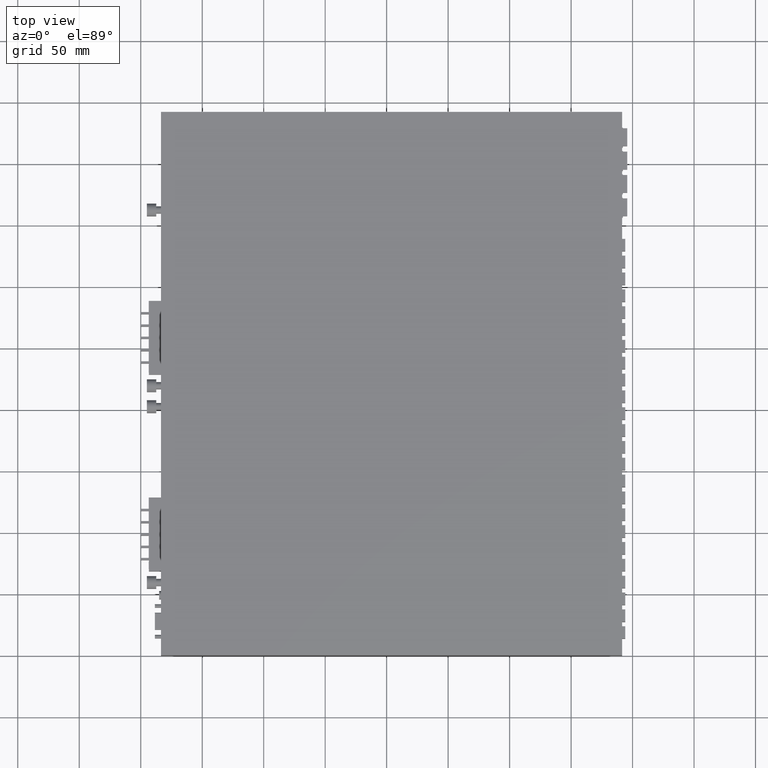
[diagram: clean part render]
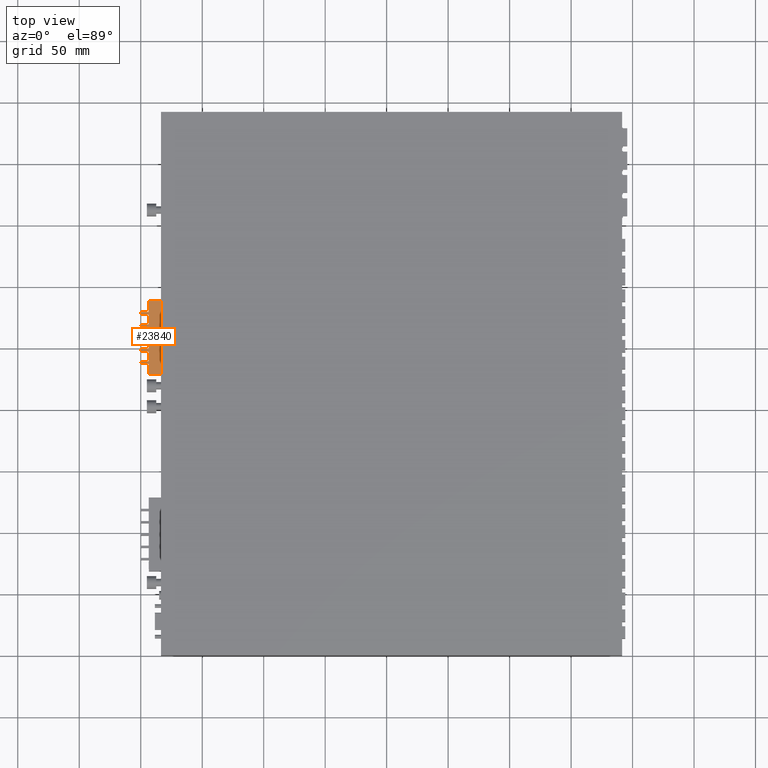
[diagram: same view with one face highlighted and labeled with its STEP entity id]
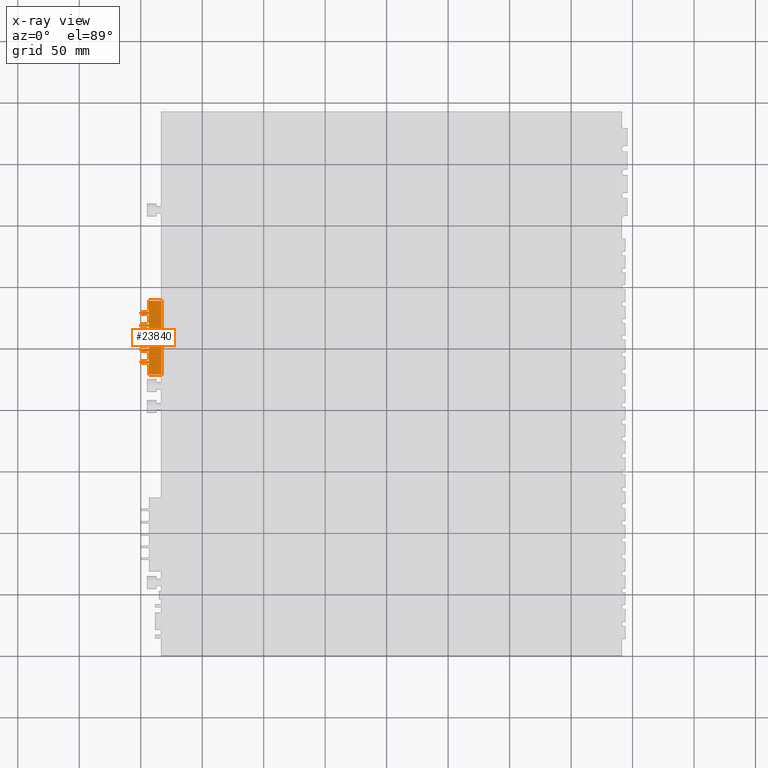
[diagram: x-ray of the same camera — body ghosted, the highlighted face saturated]
A machine part, top view. The second image highlights one B-rep face of the part: STEP entity #23840.
The next image is the same camera in x-ray: the body ghosted, the highlighted face saturated — about 0% of this face is hidden behind the body in this view.
In plain terms, the highlighted planar face has unit normal (-0, 0, -1).
Its self-contained STEP definition (entity closure, byte-faithful):
#21850=CARTESIAN_POINT('',(67.9060130425648,-15.0963677763395,
-1.97272753688083E-11));
#21860=DIRECTION('',(1.38777878078145E-16,-1.,-6.22687289771728E-17));
#21870=DIRECTION('',(1.,1.38777878078145E-16,0.));
#21880=AXIS2_PLACEMENT_3D('',#21850,#21860,#21870);
#21890=PLANE('',#21880);
#21900=CARTESIAN_POINT('',(67.9060130425648,-15.0963677763395,0.));
#21910=DIRECTION('',(-1.32801947981286E-16,6.22687289771727E-17,-1.));
#21920=VECTOR('',#21910,1.);
#21930=LINE('',#21900,#21920);
#21940=CARTESIAN_POINT('',(67.9060130425648,-15.0963677763395,
0.199999999980264));
#21950=VERTEX_POINT('',#21940);
#21960=CARTESIAN_POINT('',(67.9060130425648,-15.0963677763395,
-10.0000000000197));
#21970=VERTEX_POINT('',#21960);
#21980=EDGE_CURVE('',#21950,#21970,#21930,.T.);
#21990=ORIENTED_EDGE('',*,*,#21980,.T.);
#22000=CARTESIAN_POINT('',(160.,-15.0963677763395,0.199999999980264));
#22010=DIRECTION('',(-1.,-1.38777878078145E-16,0.));
#22020=VECTOR('',#22010,1.);
#22030=LINE('',#22000,#22020);
#22040=CARTESIAN_POINT('',(7.90601304256481,-15.0963677763395,
0.199999999980264));
#22050=VERTEX_POINT('',#22040);
#22060=EDGE_CURVE('',#21950,#22050,#22030,.T.);
#22070=ORIENTED_EDGE('',*,*,#22060,.F.);
#22080=CARTESIAN_POINT('',(7.90601304256481,-15.0963677763395,0.));
#22090=DIRECTION('',(-1.32801947981286E-16,6.22687289771727E-17,-1.));
#22100=VECTOR('',#22090,1.);
#22110=LINE('',#22080,#22100);
#22120=CARTESIAN_POINT('',(7.90601304256481,-15.0963677763395,
-9.90000000001973));
#22130=VERTEX_POINT('',#22120);
#22140=EDGE_CURVE('',#22050,#22130,#22110,.T.);
#22150=ORIENTED_EDGE('',*,*,#22140,.F.);
#22160=CARTESIAN_POINT('',(160.,-15.0963677763395,-9.90000000001973));
#22170=DIRECTION('',(-1.,-1.38777878078145E-16,0.));
#22180=VECTOR('',#22170,1.);
#22190=LINE('',#22160,#22180);
#22200=CARTESIAN_POINT('',(17.0060130425648,-15.0963677763395,
-9.90000000001973));
#22210=VERTEX_POINT('',#22200);
#22220=EDGE_CURVE('',#22210,#22130,#22190,.T.);
#22230=ORIENTED_EDGE('',*,*,#22220,.T.);
#22240=CARTESIAN_POINT('',(17.0060130425648,-15.0963677763395,0.));
#22250=DIRECTION('',(2.37936704101093E-16,-6.22687289771727E-17,1.));
#22260=VECTOR('',#22250,1.);
#22270=LINE('',#22240,#22260);
#22280=CARTESIAN_POINT('',(17.0060130425648,-15.0963677763395,
-16.5000000000197));
#22290=VERTEX_POINT('',#22280);
#22300=EDGE_CURVE('',#22290,#22210,#22270,.T.);
#22310=ORIENTED_EDGE('',*,*,#22300,.T.);
#22320=CARTESIAN_POINT('',(160.,-15.0963677763395,-16.5000000000198));
#22330=DIRECTION('',(-1.,-1.38777878078145E-16,1.32801947981286E-16));
#22340=VECTOR('',#22330,1.);
#22350=LINE('',#22320,#22340);
#22360=CARTESIAN_POINT('',(18.8060130425648,-15.0963677763395,
-16.5000000000197));
#22370=VERTEX_POINT('',#22360);
#22380=EDGE_CURVE('',#22370,#22290,#22350,.T.);
#22390=ORIENTED_EDGE('',*,*,#22380,.T.);
#22400=CARTESIAN_POINT('',(18.8060130425648,-15.0963677763395,0.));
#22410=DIRECTION('',(-2.37936704101093E-16,6.22687289771727E-17,-1.));
#22420=VECTOR('',#22410,1.);
#22430=LINE('',#22400,#22420);
#22440=CARTESIAN_POINT('',(18.8060130425648,-15.0963677763395,
-10.0000000000197));
#22450=VERTEX_POINT('',#22440);
#22460=EDGE_CURVE('',#22450,#22370,#22430,.T.);
#22470=ORIENTED_EDGE('',*,*,#22460,.T.);
#22480=CARTESIAN_POINT('',(160.,-15.0963677763395,-10.0000000000197));
#22490=DIRECTION('',(1.,1.38777878078145E-16,-1.32801947981286E-16));
#22500=VECTOR('',#22490,1.);
#22510=LINE('',#22480,#22500);
#22520=CARTESIAN_POINT('',(27.0060130425648,-15.0963677763395,
-10.0000000000197));
#22530=VERTEX_POINT('',#22520);
#22540=EDGE_CURVE('',#22450,#22530,#22510,.T.);
#22550=ORIENTED_EDGE('',*,*,#22540,.F.);
#22560=CARTESIAN_POINT('',(27.0060130425648,-15.0963677763395,0.));
#22570=DIRECTION('',(2.37936704101093E-16,-6.22687289771727E-17,1.));
#22580=VECTOR('',#22570,1.);
#22590=LINE('',#22560,#22580);
#22600=CARTESIAN_POINT('',(27.0060130425648,-15.0963677763395,
-16.5000000000197));
#22610=VERTEX_POINT('',#22600);
#22620=EDGE_CURVE('',#22610,#22530,#22590,.T.);
#22630=ORIENTED_EDGE('',*,*,#22620,.T.);
#22640=CARTESIAN_POINT('',(160.,-15.0963677763395,-16.5000000000198));
#22650=DIRECTION('',(-1.,-1.38777878078145E-16,1.32801947981286E-16));
#22660=VECTOR('',#22650,1.);
#22670=LINE('',#22640,#22660);
#22680=CARTESIAN_POINT('',(28.8060130425648,-15.0963677763395,
-16.5000000000197));
#22690=VERTEX_POINT('',#22680);
#22700=EDGE_CURVE('',#22690,#22610,#22670,.T.);
#22710=ORIENTED_EDGE('',*,*,#22700,.T.);
#22720=CARTESIAN_POINT('',(28.8060130425648,-15.0963677763395,0.));
#22730=DIRECTION('',(-2.37936704101093E-16,6.22687289771727E-17,-1.));
#22740=VECTOR('',#22730,1.);
#22750=LINE('',#22720,#22740);
#22760=CARTESIAN_POINT('',(28.8060130425648,-15.0963677763395,
-10.0000000000197));
#22770=VERTEX_POINT('',#22760);
#22780=EDGE_CURVE('',#22770,#22690,#22750,.T.);
#22790=ORIENTED_EDGE('',*,*,#22780,.T.);
#22800=CARTESIAN_POINT('',(160.,-15.0963677763395,-10.0000000000197));
#22810=DIRECTION('',(1.,1.38777878078145E-16,-1.32801947981286E-16));
#22820=VECTOR('',#22810,1.);
#22830=LINE('',#22800,#22820);
#22840=CARTESIAN_POINT('',(37.0060130425648,-15.0963677763395,
-10.0000000000197));
#22850=VERTEX_POINT('',#22840);
#22860=EDGE_CURVE('',#22770,#22850,#22830,.T.);
#22870=ORIENTED_EDGE('',*,*,#22860,.F.);
#22880=CARTESIAN_POINT('',(37.0060130425648,-15.0963677763395,0.));
#22890=DIRECTION('',(2.37936704101093E-16,-6.22687289771727E-17,1.));
#22900=VECTOR('',#22890,1.);
#22910=LINE('',#22880,#22900);
#22920=CARTESIAN_POINT('',(37.0060130425648,-15.0963677763395,
-16.5000000000197));
#22930=VERTEX_POINT('',#22920);
#22940=EDGE_CURVE('',#22930,#22850,#22910,.T.);
#22950=ORIENTED_EDGE('',*,*,#22940,.T.);
#22960=CARTESIAN_POINT('',(160.,-15.0963677763395,-16.5000000000198));
#22970=DIRECTION('',(-1.,-1.38777878078145E-16,1.32801947981286E-16));
#22980=VECTOR('',#22970,1.);
#22990=LINE('',#22960,#22980);
#23000=CARTESIAN_POINT('',(38.8060130425648,-15.0963677763395,
-16.5000000000197));
#23010=VERTEX_POINT('',#23000);
#23020=EDGE_CURVE('',#23010,#22930,#22990,.T.);
#23030=ORIENTED_EDGE('',*,*,#23020,.T.);
#23040=CARTESIAN_POINT('',(38.8060130425648,-15.0963677763395,0.));
#23050=DIRECTION('',(-2.37936704101093E-16,6.22687289771727E-17,-1.));
#23060=VECTOR('',#23050,1.);
#23070=LINE('',#23040,#23060);
#23080=CARTESIAN_POINT('',(38.8060130425648,-15.0963677763395,
-10.0000000000197));
#23090=VERTEX_POINT('',#23080);
#23100=EDGE_CURVE('',#23090,#23010,#23070,.T.);
#23110=ORIENTED_EDGE('',*,*,#23100,.T.);
#23120=CARTESIAN_POINT('',(160.,-15.0963677763395,-10.0000000000197));
#23130=DIRECTION('',(1.,1.38777878078145E-16,-1.32801947981286E-16));
#23140=VECTOR('',#23130,1.);
#23150=LINE('',#23120,#23140);
#23160=CARTESIAN_POINT('',(47.0060130425648,-15.0963677763395,
-10.0000000000197));
#23170=VERTEX_POINT('',#23160);
#23180=EDGE_CURVE('',#23090,#23170,#23150,.T.);
#23190=ORIENTED_EDGE('',*,*,#23180,.F.);
#23200=CARTESIAN_POINT('',(47.0060130425648,-15.0963677763395,0.));
#23210=DIRECTION('',(2.37936704101093E-16,-6.22687289771727E-17,1.));
#23220=VECTOR('',#23210,1.);
#23230=LINE('',#23200,#23220);
#23240=CARTESIAN_POINT('',(47.0060130425648,-15.0963677763395,
-16.5000000000197));
#23250=VERTEX_POINT('',#23240);
#23260=EDGE_CURVE('',#23250,#23170,#23230,.T.);
#23270=ORIENTED_EDGE('',*,*,#23260,.T.);
#23280=CARTESIAN_POINT('',(160.,-15.0963677763395,-16.5000000000198));
#23290=DIRECTION('',(-1.,-1.38777878078145E-16,1.32801947981286E-16));
#23300=VECTOR('',#23290,1.);
#23310=LINE('',#23280,#23300);
#23320=CARTESIAN_POINT('',(48.8060130425648,-15.0963677763395,
-16.5000000000197));
#23330=VERTEX_POINT('',#23320);
#23340=EDGE_CURVE('',#23330,#23250,#23310,.T.);
#23350=ORIENTED_EDGE('',*,*,#23340,.T.);
#23360=CARTESIAN_POINT('',(48.8060130425648,-15.0963677763395,0.));
#23370=DIRECTION('',(-2.37936704101093E-16,6.22687289771727E-17,-1.));
#23380=VECTOR('',#23370,1.);
#23390=LINE('',#23360,#23380);
#23400=CARTESIAN_POINT('',(48.8060130425648,-15.0963677763395,
-10.0000000000197));
#23410=VERTEX_POINT('',#23400);
#23420=EDGE_CURVE('',#23410,#23330,#23390,.T.);
#23430=ORIENTED_EDGE('',*,*,#23420,.T.);
#23440=CARTESIAN_POINT('',(160.,-15.0963677763395,-10.0000000000197));
#23450=DIRECTION('',(1.,1.38777878078145E-16,-1.32801947981286E-16));
#23460=VECTOR('',#23450,1.);
#23470=LINE('',#23440,#23460);
#23480=CARTESIAN_POINT('',(57.0060130425648,-15.0963677763395,
-10.0000000000197));
#23490=VERTEX_POINT('',#23480);
#23500=EDGE_CURVE('',#23410,#23490,#23470,.T.);
#23510=ORIENTED_EDGE('',*,*,#23500,.F.);
#23520=CARTESIAN_POINT('',(57.0060130425648,-15.0963677763395,0.));
#23530=DIRECTION('',(2.37936704101093E-16,-6.22687289771727E-17,1.));
#23540=VECTOR('',#23530,1.);
#23550=LINE('',#23520,#23540);
#23560=CARTESIAN_POINT('',(57.0060130425648,-15.0963677763395,
-16.5000000000197));
#23570=VERTEX_POINT('',#23560);
#23580=EDGE_CURVE('',#23570,#23490,#23550,.T.);
#23590=ORIENTED_EDGE('',*,*,#23580,.T.);
#23600=CARTESIAN_POINT('',(160.,-15.0963677763395,-16.5000000000198));
#23610=DIRECTION('',(-1.,-1.38777878078145E-16,1.32801947981286E-16));
#23620=VECTOR('',#23610,1.);
#23630=LINE('',#23600,#23620);
#23640=CARTESIAN_POINT('',(58.8060130425648,-15.0963677763395,
-16.5000000000197));
#23650=VERTEX_POINT('',#23640);
#23660=EDGE_CURVE('',#23650,#23570,#23630,.T.);
#23670=ORIENTED_EDGE('',*,*,#23660,.T.);
#23680=CARTESIAN_POINT('',(58.8060130425648,-15.0963677763395,0.));
#23690=DIRECTION('',(-2.37936704101093E-16,6.22687289771727E-17,-1.));
#23700=VECTOR('',#23690,1.);
#23710=LINE('',#23680,#23700);
#23720=CARTESIAN_POINT('',(58.8060130425648,-15.0963677763395,
-10.0000000000197));
#23730=VERTEX_POINT('',#23720);
#23740=EDGE_CURVE('',#23730,#23650,#23710,.T.);
#23750=ORIENTED_EDGE('',*,*,#23740,.T.);
#23760=CARTESIAN_POINT('',(160.,-15.0963677763395,-10.0000000000197));
#23770=DIRECTION('',(1.,1.38777878078145E-16,-1.32801947981286E-16));
#23780=VECTOR('',#23770,1.);
#23790=LINE('',#23760,#23780);
#23800=EDGE_CURVE('',#23730,#21970,#23790,.T.);
#23810=ORIENTED_EDGE('',*,*,#23800,.F.);
#23820=EDGE_LOOP('',(#23810,#23750,#23670,#23590,#23510,#23430,#23350,
#23270,#23190,#23110,#23030,#22950,#22870,#22790,#22710,#22630,#22550,
#22470,#22390,#22310,#22230,#22150,#22070,#21990));
#23830=FACE_OUTER_BOUND('',#23820,.T.);
#23840=ADVANCED_FACE('',(#23830),#21890,.F.);